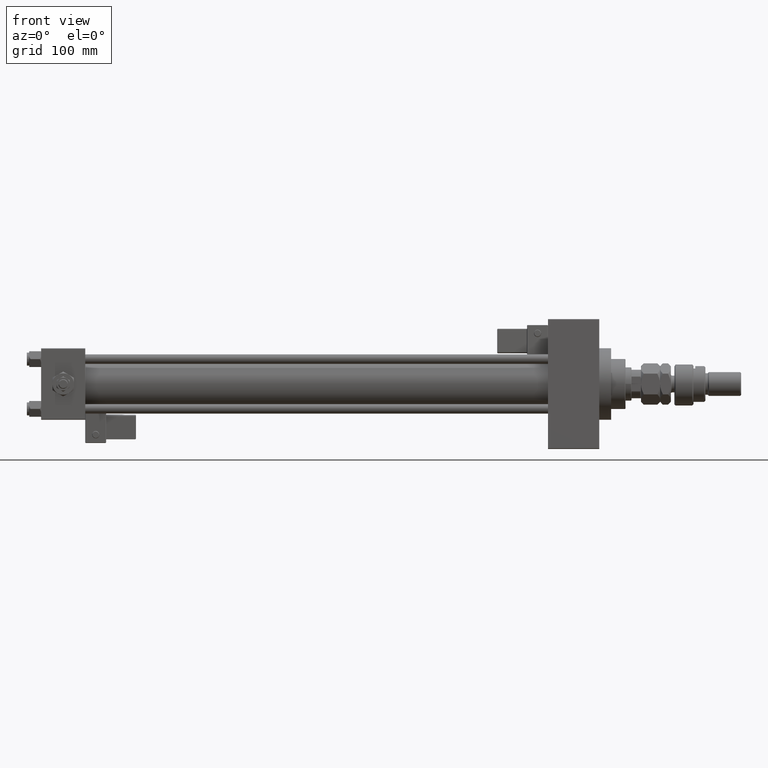
[diagram: clean part render]
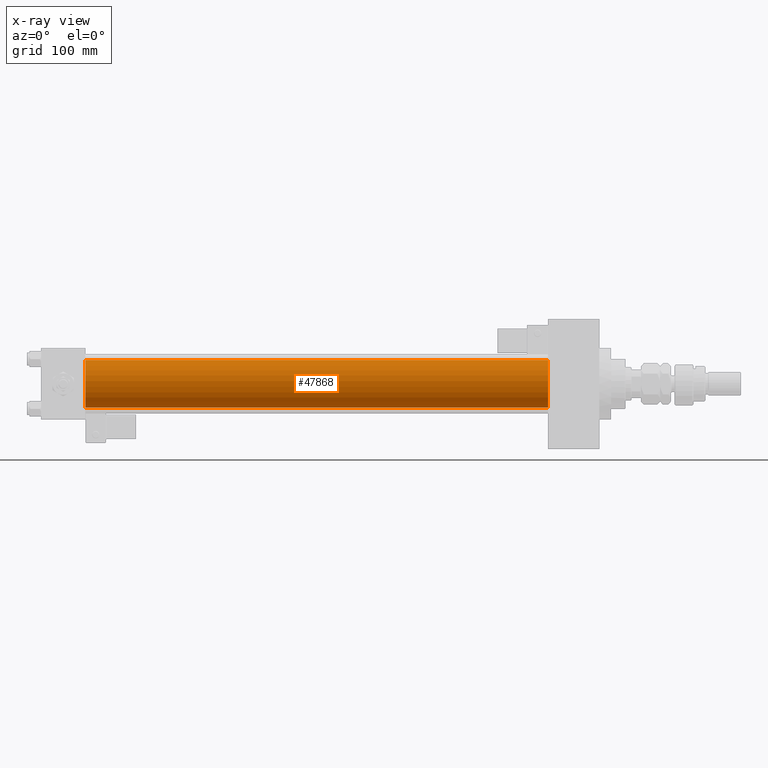
[diagram: x-ray — body ghosted, one internal face saturated and labeled with its STEP entity id]
A machine part, front view, then the same camera in x-ray: the body is ghosted and one INTERNAL B-rep face — a face not visible from any outside direction — is saturated and labeled: STEP entity #47868.
In plain terms, the highlighted cylindrical surface (edge-blend (fillet) strip) has radius 20 mm, axis along (-1, -0, -0).
Its self-contained STEP definition (entity closure, byte-faithful):
#4266 = AXIS2_PLACEMENT_3D ( 'NONE', #7046, #36305, #45771 ) ;
#6111 = EDGE_CURVE ( 'NONE', #11656, #15578, #37197, .T. ) ;
#7046 = CARTESIAN_POINT ( 'NONE',  ( 425.0000000000000000, -2.602085213965210642E-15, 0.000000000000000000 ) ) ;
#10110 = CYLINDRICAL_SURFACE ( 'NONE', #39414, 20.00000000000000000 ) ;
#10232 = CARTESIAN_POINT ( 'NONE',  ( 425.0000000000000000, -2.602085213965210642E-15, 20.00000000000000000 ) ) ;
#10537 = DIRECTION ( 'NONE',  ( -1.000000000000000000, -0.000000000000000000, -0.000000000000000000 ) ) ;
#11656 = VERTEX_POINT ( 'NONE', #44385 ) ;
#11980 = ORIENTED_EDGE ( 'NONE', *, *, #6111, .T. ) ;
#13311 = AXIS2_PLACEMENT_3D ( 'NONE', #17451, #26191, #50785 ) ;
#14755 = DIRECTION ( 'NONE',  ( -1.000000000000000000, -0.000000000000000000, -0.000000000000000000 ) ) ;
#15578 = VERTEX_POINT ( 'NONE', #16576 ) ;
#16576 = CARTESIAN_POINT ( 'NONE',  ( 37.00000000000000000, -1.527916156705046464E-16, -20.00000000000000000 ) ) ;
#17293 = ORIENTED_EDGE ( 'NONE', *, *, #49454, .F. ) ;
#17451 = CARTESIAN_POINT ( 'NONE',  ( 37.00000000000000000, -2.602085213965210642E-15, 0.000000000000000000 ) ) ;
#18215 = CARTESIAN_POINT ( 'NONE',  ( 425.0000000000000000, -2.602085213965210642E-15, 20.00000000000000000 ) ) ;
#21063 = ORIENTED_EDGE ( 'NONE', *, *, #28222, .F. ) ;
#23077 = VERTEX_POINT ( 'NONE', #10232 ) ;
#24680 = CIRCLE ( 'NONE', #13311, 20.00000000000000000 ) ;
#26191 = DIRECTION ( 'NONE',  ( 1.000000000000000000, 0.000000000000000000, 0.000000000000000000 ) ) ;
#26793 = CARTESIAN_POINT ( 'NONE',  ( 425.0000000000000000, -2.602085213965210642E-15, 0.000000000000000000 ) ) ;
#28222 = EDGE_CURVE ( 'NONE', #23077, #35530, #43355, .T. ) ;
#28470 = DIRECTION ( 'NONE',  ( -1.000000000000000000, -0.000000000000000000, -0.000000000000000000 ) ) ;
#29798 = VECTOR ( 'NONE', #28470, 1000.000000000000000 ) ;
#31435 = DIRECTION ( 'NONE',  ( 0.000000000000000000, 0.000000000000000000, 1.000000000000000000 ) ) ;
#32908 = VECTOR ( 'NONE', #10537, 1000.000000000000000 ) ;
#35530 = VERTEX_POINT ( 'NONE', #46876 ) ;
#35858 = ORIENTED_EDGE ( 'NONE', *, *, #39198, .T. ) ;
#36305 = DIRECTION ( 'NONE',  ( 1.000000000000000000, 0.000000000000000000, 0.000000000000000000 ) ) ;
#36929 = CARTESIAN_POINT ( 'NONE',  ( 425.0000000000000000, -1.527916156705046464E-16, -20.00000000000000000 ) ) ;
#37197 = LINE ( 'NONE', #36929, #29798 ) ;
#37298 = EDGE_LOOP ( 'NONE', ( #35858, #11980, #17293, #21063 ) ) ;
#38327 = CIRCLE ( 'NONE', #4266, 20.00000000000000000 ) ;
#39198 = EDGE_CURVE ( 'NONE', #23077, #11656, #38327, .T. ) ;
#39414 = AXIS2_PLACEMENT_3D ( 'NONE', #26793, #14755, #31435 ) ;
#43355 = LINE ( 'NONE', #18215, #32908 ) ;
#44385 = CARTESIAN_POINT ( 'NONE',  ( 425.0000000000000000, -1.527916156705046464E-16, -20.00000000000000000 ) ) ;
#45771 = DIRECTION ( 'NONE',  ( 0.000000000000000000, 0.000000000000000000, -1.000000000000000000 ) ) ;
#46876 = CARTESIAN_POINT ( 'NONE',  ( 37.00000000000000000, -2.602085213965210642E-15, 20.00000000000000000 ) ) ;
#47546 = FACE_OUTER_BOUND ( 'NONE', #37298, .T. ) ;
#47868 = ADVANCED_FACE ( 'NONE', ( #47546 ), #10110, .F. ) ;
#49454 = EDGE_CURVE ( 'NONE', #35530, #15578, #24680, .T. ) ;
#50785 = DIRECTION ( 'NONE',  ( 0.000000000000000000, 0.000000000000000000, -1.000000000000000000 ) ) ;